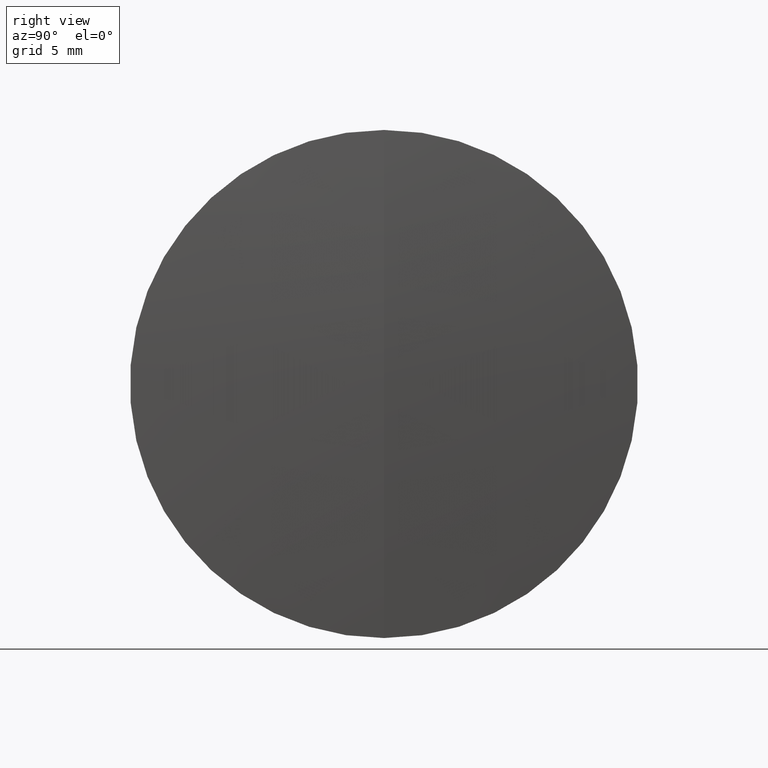
[diagram: clean part render]
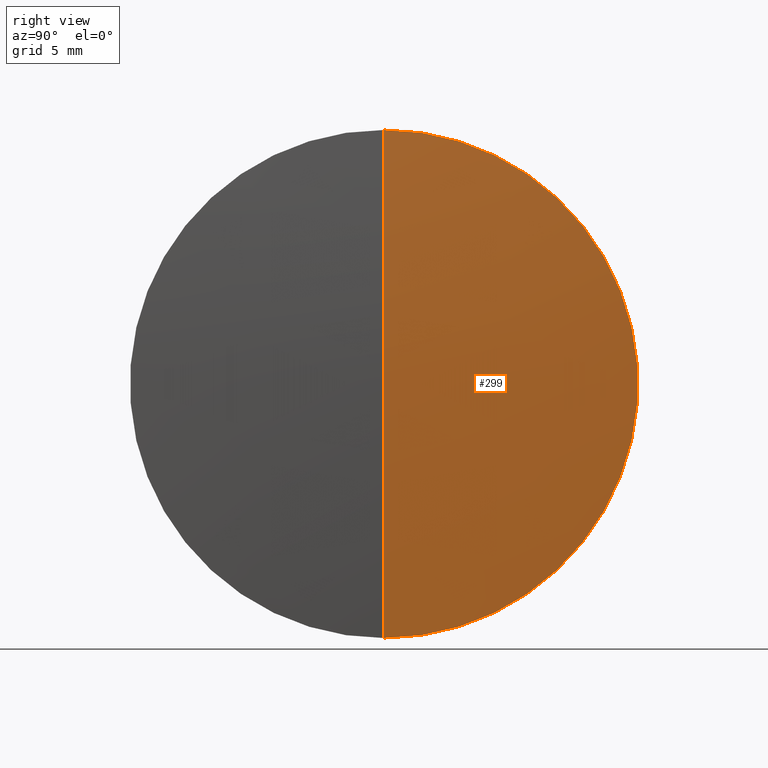
[diagram: same view with one face highlighted and labeled with its STEP entity id]
A machine part, right view. The second image highlights one B-rep face of the part: STEP entity #299.
In plain terms, the highlighted spherical surface has radius 142.505 mm.
Its self-contained STEP definition (entity closure, byte-faithful):
#14 = CARTESIAN_POINT ( 'NONE',  ( -78.10333102642515300, 0.0000000000000000000, 0.0000000000000000000 ) ) ;
#24 = DIRECTION ( 'NONE',  ( -0.0000000000000000000, 1.000000000000000000, 1.224646799147353200E-016 ) ) ;
#42 = ORIENTED_EDGE ( 'NONE', *, *, #247, .F. ) ;
#49 = DIRECTION ( 'NONE',  ( 0.0000000000000000000, -1.224646799147353200E-016, 1.000000000000000000 ) ) ;
#57 = CARTESIAN_POINT ( 'NONE',  ( 63.85238398709587700, 0.0000000000000000000, 12.49999999999997200 ) ) ;
#62 = CIRCLE ( 'NONE', #324, 142.5050000000000000 ) ;
#63 = CARTESIAN_POINT ( 'NONE',  ( 63.85238398709587700, 0.0000000000000000000, 0.0000000000000000000 ) ) ;
#65 = ORIENTED_EDGE ( 'NONE', *, *, #72, .T. ) ;
#72 = EDGE_CURVE ( 'NONE', #191, #114, #167, .T. ) ;
#91 = DIRECTION ( 'NONE',  ( -1.000000000000000000, -0.0000000000000000000, -0.0000000000000000000 ) ) ;
#99 = DIRECTION ( 'NONE',  ( 0.0000000000000000000, 0.0000000000000000000, -1.000000000000000000 ) ) ;
#114 = VERTEX_POINT ( 'NONE', #207 ) ;
#118 = CARTESIAN_POINT ( 'NONE',  ( -78.10333102642515300, 0.0000000000000000000, 0.0000000000000000000 ) ) ;
#120 = CARTESIAN_POINT ( 'NONE',  ( -78.10333102642515300, 0.0000000000000000000, 0.0000000000000000000 ) ) ;
#122 = DIRECTION ( 'NONE',  ( 0.0000000000000000000, 0.0000000000000000000, 1.000000000000000000 ) ) ;
#125 = DIRECTION ( 'NONE',  ( 0.0000000000000000000, 0.0000000000000000000, 1.000000000000000000 ) ) ;
#149 = VERTEX_POINT ( 'NONE', #57 ) ;
#151 = CARTESIAN_POINT ( 'NONE',  ( 64.40166897357484300, 0.0000000000000000000, 8.725914605624677400E-015 ) ) ;
#164 = AXIS2_PLACEMENT_3D ( 'NONE', #63, #91, #125 ) ;
#167 = CIRCLE ( 'NONE', #209, 142.5050000000000000 ) ;
#174 = EDGE_LOOP ( 'NONE', ( #250, #65, #42 ) ) ;
#191 = VERTEX_POINT ( 'NONE', #151 ) ;
#207 = CARTESIAN_POINT ( 'NONE',  ( 63.85238398709587700, 1.530808498934188200E-015, -12.49999999999997200 ) ) ;
#209 = AXIS2_PLACEMENT_3D ( 'NONE', #14, #24, #49 ) ;
#217 = CIRCLE ( 'NONE', #164, 12.49999999999997200 ) ;
#230 = DIRECTION ( 'NONE',  ( 0.0000000000000000000, 1.000000000000000000, 0.0000000000000000000 ) ) ;
#235 = AXIS2_PLACEMENT_3D ( 'NONE', #118, #230, #122 ) ;
#247 = EDGE_CURVE ( 'NONE', #149, #114, #217, .T. ) ;
#250 = ORIENTED_EDGE ( 'NONE', *, *, #274, .F. ) ;
#251 = FACE_OUTER_BOUND ( 'NONE', #174, .T. ) ;
#274 = EDGE_CURVE ( 'NONE', #191, #149, #62, .T. ) ;
#299 = ADVANCED_FACE ( 'NONE', ( #251 ), #307, .T. ) ;
#307 = SPHERICAL_SURFACE ( 'NONE', #235, 142.5050000000000000 ) ;
#315 = DIRECTION ( 'NONE',  ( 0.0000000000000000000, -1.000000000000000000, 0.0000000000000000000 ) ) ;
#324 = AXIS2_PLACEMENT_3D ( 'NONE', #120, #315, #99 ) ;